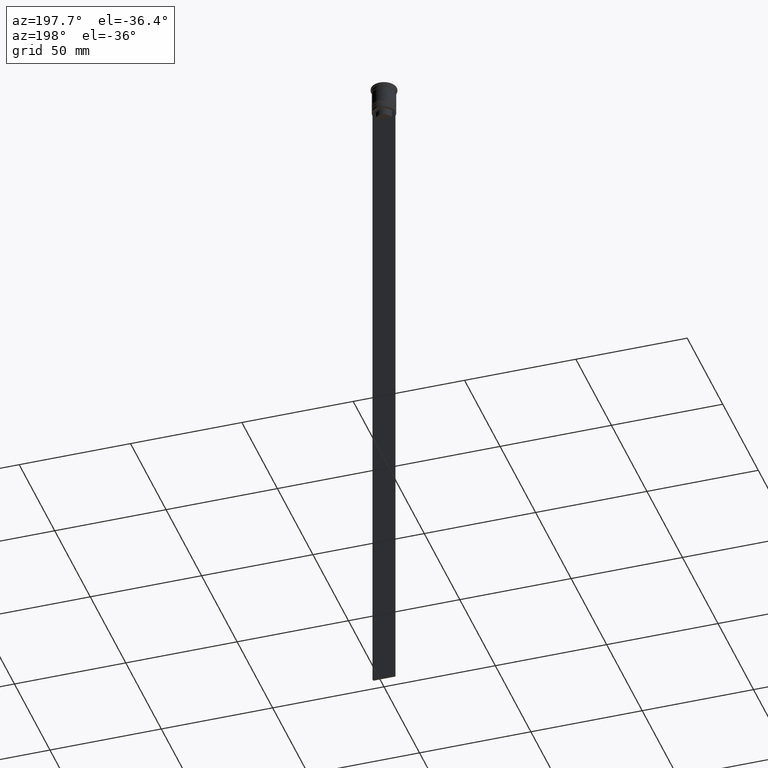
[diagram: clean part render]
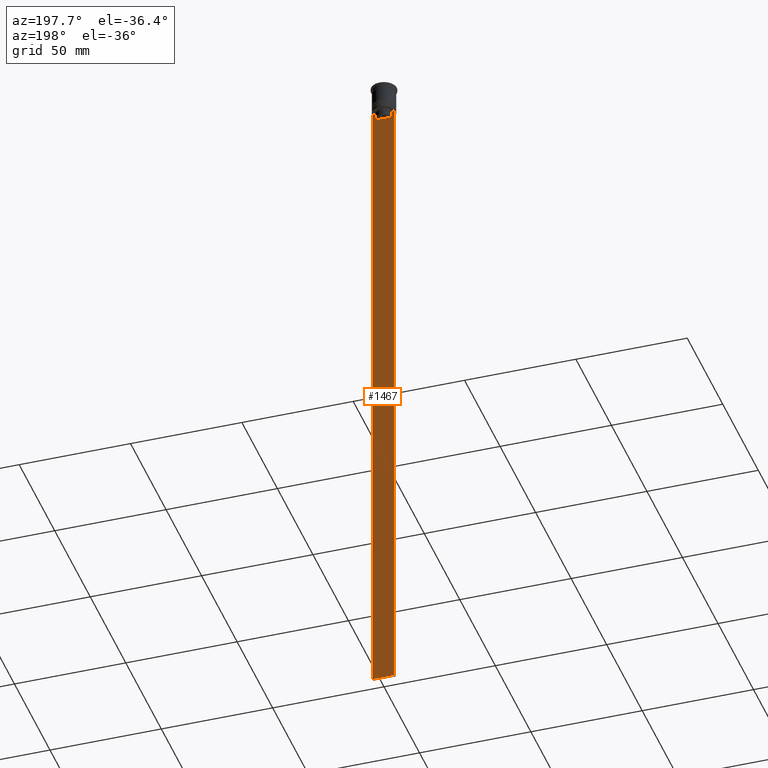
[diagram: same view with one face highlighted and labeled with its STEP entity id]
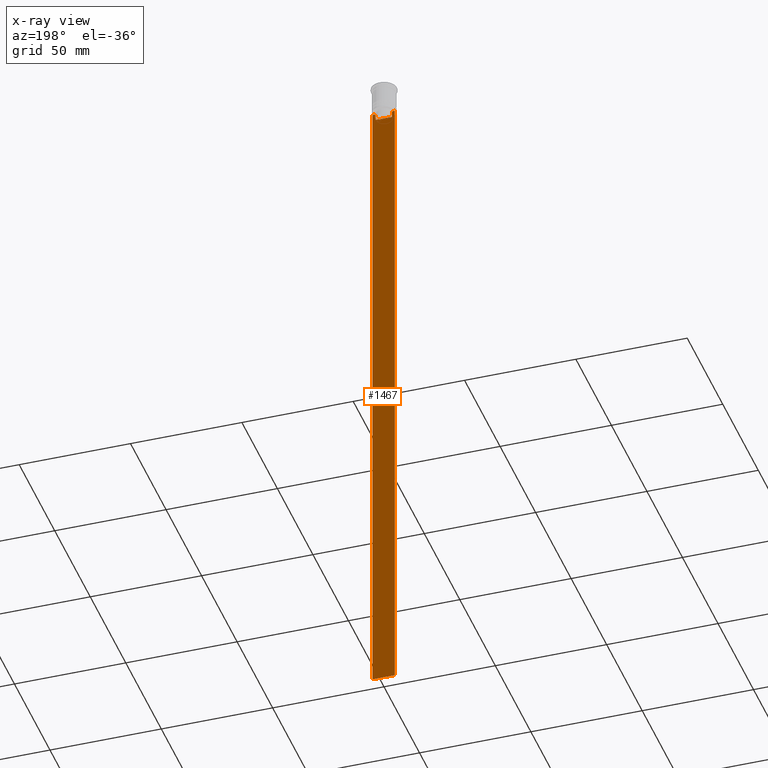
[diagram: x-ray of the same camera — body ghosted, the highlighted face saturated]
A machine part, auxiliary view. The second image highlights one B-rep face of the part: STEP entity #1467.
The next image is the same camera in x-ray: the body ghosted, the highlighted face saturated — about 0% of this face is hidden behind the body in this view.
In plain terms, the highlighted planar face has unit normal (0, -1, -0).
Its self-contained STEP definition (entity closure, byte-faithful):
#11 = CARTESIAN_POINT ( 'NONE',  ( -3.615591237958188042, 0.4999999999999991673, -13.00000000000000178 ) ) ;
#18 = ORIENTED_EDGE ( 'NONE', *, *, #2335, .T. ) ;
#30 = EDGE_CURVE ( 'NONE', #1074, #1221, #733, .T. ) ;
#100 = LINE ( 'NONE', #556, #1204 ) ;
#113 = ORIENTED_EDGE ( 'NONE', *, *, #1453, .T. ) ;
#127 = ORIENTED_EDGE ( 'NONE', *, *, #1357, .T. ) ;
#165 = VECTOR ( 'NONE', #286, 1000.000000000000000 ) ;
#242 = VERTEX_POINT ( 'NONE', #2214 ) ;
#262 = ORIENTED_EDGE ( 'NONE', *, *, #1141, .T. ) ;
#271 = CARTESIAN_POINT ( 'NONE',  ( 3.615591237958188042, 0.4999999999999991673, -13.00000000000000178 ) ) ;
#286 = DIRECTION ( 'NONE',  ( 1.000000000000000000, 0.000000000000000000, 0.000000000000000000 ) ) ;
#321 = CARTESIAN_POINT ( 'NONE',  ( 0.000000000000000000, 0.4999999999999991673, -15.50000000000000000 ) ) ;
#381 = ORIENTED_EDGE ( 'NONE', *, *, #1833, .T. ) ;
#382 = EDGE_CURVE ( 'NONE', #1001, #1323, #1451, .T. ) ;
#388 = FACE_OUTER_BOUND ( 'NONE', #2001, .T. ) ;
#426 = CARTESIAN_POINT ( 'NONE',  ( -4.999999999999999112, 0.4999999999999993339, -12.50000000000000000 ) ) ;
#494 = B_SPLINE_CURVE_WITH_KNOTS ( 'NONE', 3,
 ( #1791, #1068, #1267, #1606 ),
 .UNSPECIFIED., .F., .F.,
 ( 4, 4 ),
 ( 0.007067514914986626831, 0.007777582239375527978 ),
 .UNSPECIFIED. ) ;
#556 = CARTESIAN_POINT ( 'NONE',  ( 5.000000000000000000, 0.4999999999999991673, -2.450124378879110054 ) ) ;
#576 = PLANE ( 'NONE',  #1615 ) ;
#599 = ORIENTED_EDGE ( 'NONE', *, *, #382, .F. ) ;
#717 = CARTESIAN_POINT ( 'NONE',  ( -3.615591237958188486, 0.4999999999999991673, -15.50000000000000000 ) ) ;
#719 = CARTESIAN_POINT ( 'NONE',  ( 5.000000000000000000, 0.4999999999999991673, -12.50000000000000000 ) ) ;
#733 = LINE ( 'NONE', #719, #1117 ) ;
#788 = LINE ( 'NONE', #1519, #1391 ) ;
#793 = CARTESIAN_POINT ( 'NONE',  ( 5.000000000000000000, 0.4999999999999991673, -12.50000000000000000 ) ) ;
#833 = VERTEX_POINT ( 'NONE', #11 ) ;
#877 = B_SPLINE_CURVE_WITH_KNOTS ( 'NONE', 3,
 ( #271, #2304, #1005, #1735 ),
 .UNSPECIFIED., .F., .F.,
 ( 4, 4 ),
 ( 0.01745179617248911533, 0.01816207215777259493 ),
 .UNSPECIFIED. ) ;
#909 = CARTESIAN_POINT ( 'NONE',  ( 5.000000000000000000, 0.4999999999999991673, -312.5000000000000000 ) ) ;
#992 = DIRECTION ( 'NONE',  ( -0.000000000000000000, -0.000000000000000000, 1.000000000000000000 ) ) ;
#1001 = VERTEX_POINT ( 'NONE', #426 ) ;
#1005 = CARTESIAN_POINT ( 'NONE',  ( 3.951794168112527927, 0.4999999999999991673, -12.66675163073525923 ) ) ;
#1064 = LINE ( 'NONE', #1788, #1351 ) ;
#1068 = CARTESIAN_POINT ( 'NONE',  ( -3.951794205566887985, 0.4999999999999991673, -12.66675159355373737 ) ) ;
#1074 = VERTEX_POINT ( 'NONE', #1857 ) ;
#1078 = DIRECTION ( 'NONE',  ( 0.000000000000000000, 0.000000000000000000, -1.000000000000000000 ) ) ;
#1117 = VECTOR ( 'NONE', #1790, 1000.000000000000000 ) ;
#1123 = LINE ( 'NONE', #793, #1763 ) ;
#1131 = DIRECTION ( 'NONE',  ( 0.000000000000000000, 0.000000000000000000, -1.000000000000000000 ) ) ;
#1141 = EDGE_CURVE ( 'NONE', #2129, #1366, #1967, .T. ) ;
#1204 = VECTOR ( 'NONE', #1078, 1000.000000000000000 ) ;
#1215 = EDGE_CURVE ( 'NONE', #1247, #1074, #877, .T. ) ;
#1221 = VERTEX_POINT ( 'NONE', #1571 ) ;
#1231 = EDGE_CURVE ( 'NONE', #1221, #1700, #100, .T. ) ;
#1247 = VERTEX_POINT ( 'NONE', #1830 ) ;
#1267 = CARTESIAN_POINT ( 'NONE',  ( -3.783746449387932920, 0.4999999999999991673, -12.83342999751715752 ) ) ;
#1323 = VERTEX_POINT ( 'NONE', #2344 ) ;
#1351 = VECTOR ( 'NONE', #1434, 1000.000000000000000 ) ;
#1357 = EDGE_CURVE ( 'NONE', #242, #833, #494, .T. ) ;
#1366 = VERTEX_POINT ( 'NONE', #2167 ) ;
#1369 = DIRECTION ( 'NONE',  ( -1.000000000000000000, 0.000000000000000000, 0.000000000000000000 ) ) ;
#1391 = VECTOR ( 'NONE', #1369, 1000.000000000000000 ) ;
#1434 = DIRECTION ( 'NONE',  ( 0.000000000000000000, 0.000000000000000000, -1.000000000000000000 ) ) ;
#1451 = LINE ( 'NONE', #1650, #1496 ) ;
#1453 = EDGE_CURVE ( 'NONE', #1366, #1247, #2078, .T. ) ;
#1467 = ADVANCED_FACE ( 'NONE', ( #388 ), #576, .F. ) ;
#1496 = VECTOR ( 'NONE', #1131, 1000.000000000000000 ) ;
#1519 = CARTESIAN_POINT ( 'NONE',  ( 5.000000000000000000, 0.4999999999999991673, -312.5000000000000000 ) ) ;
#1556 = ORIENTED_EDGE ( 'NONE', *, *, #30, .T. ) ;
#1568 = VECTOR ( 'NONE', #992, 1000.000000000000000 ) ;
#1571 = CARTESIAN_POINT ( 'NONE',  ( 5.000000000000000000, 0.4999999999999991673, -12.50000000000000000 ) ) ;
#1606 = CARTESIAN_POINT ( 'NONE',  ( -3.615591237958188042, 0.4999999999999991673, -13.00000000000000178 ) ) ;
#1615 = AXIS2_PLACEMENT_3D ( 'NONE', #2054, #1854, #1718 ) ;
#1647 = ORIENTED_EDGE ( 'NONE', *, *, #1772, .T. ) ;
#1650 = CARTESIAN_POINT ( 'NONE',  ( -4.999999999999999112, 0.4999999999999991673, -2.450124378879110054 ) ) ;
#1700 = VERTEX_POINT ( 'NONE', #909 ) ;
#1718 = DIRECTION ( 'NONE',  ( 0.000000000000000000, 0.000000000000000000, -1.000000000000000000 ) ) ;
#1735 = CARTESIAN_POINT ( 'NONE',  ( 4.119769411022908834, 0.4999999999999991673, -12.50000000000000000 ) ) ;
#1748 = ORIENTED_EDGE ( 'NONE', *, *, #1215, .T. ) ;
#1763 = VECTOR ( 'NONE', #2043, 1000.000000000000000 ) ;
#1772 = EDGE_CURVE ( 'NONE', #833, #2129, #1064, .T. ) ;
#1788 = CARTESIAN_POINT ( 'NONE',  ( -3.615591237958188042, 0.4999999999999991673, 0.000000000000000000 ) ) ;
#1790 = DIRECTION ( 'NONE',  ( 1.000000000000000000, 0.000000000000000000, 0.000000000000000000 ) ) ;
#1791 = CARTESIAN_POINT ( 'NONE',  ( -4.119769411022908834, 0.4999999999999991673, -12.50000000000000000 ) ) ;
#1830 = CARTESIAN_POINT ( 'NONE',  ( 3.615591237958188042, 0.4999999999999991673, -13.00000000000000178 ) ) ;
#1833 = EDGE_CURVE ( 'NONE', #1001, #242, #1123, .T. ) ;
#1854 = DIRECTION ( 'NONE',  ( 0.000000000000000000, -1.000000000000000000, -0.000000000000000000 ) ) ;
#1857 = CARTESIAN_POINT ( 'NONE',  ( 4.119769411022908834, 0.4999999999999991673, -12.50000000000000000 ) ) ;
#1876 = CARTESIAN_POINT ( 'NONE',  ( 3.615591237958188042, 0.4999999999999991673, 0.000000000000000000 ) ) ;
#1967 = LINE ( 'NONE', #321, #165 ) ;
#2001 = EDGE_LOOP ( 'NONE', ( #381, #127, #1647, #262, #113, #1748, #1556, #2137, #18, #599 ) ) ;
#2043 = DIRECTION ( 'NONE',  ( 1.000000000000000000, 0.000000000000000000, 0.000000000000000000 ) ) ;
#2054 = CARTESIAN_POINT ( 'NONE',  ( 5.000000000000000000, 0.4999999999999991673, -2.450124378879110054 ) ) ;
#2078 = LINE ( 'NONE', #1876, #1568 ) ;
#2129 = VERTEX_POINT ( 'NONE', #717 ) ;
#2137 = ORIENTED_EDGE ( 'NONE', *, *, #1231, .T. ) ;
#2167 = CARTESIAN_POINT ( 'NONE',  ( 3.615591237958188486, 0.4999999999999991673, -15.50000000000000000 ) ) ;
#2214 = CARTESIAN_POINT ( 'NONE',  ( -4.119769411022908834, 0.4999999999999991673, -12.50000000000000000 ) ) ;
#2304 = CARTESIAN_POINT ( 'NONE',  ( 3.783746406711540722, 0.4999999999999991673, -12.83343003979123509 ) ) ;
#2335 = EDGE_CURVE ( 'NONE', #1700, #1323, #788, .T. ) ;
#2344 = CARTESIAN_POINT ( 'NONE',  ( -4.999999999999999112, 0.4999999999999991673, -312.5000000000000000 ) ) ;